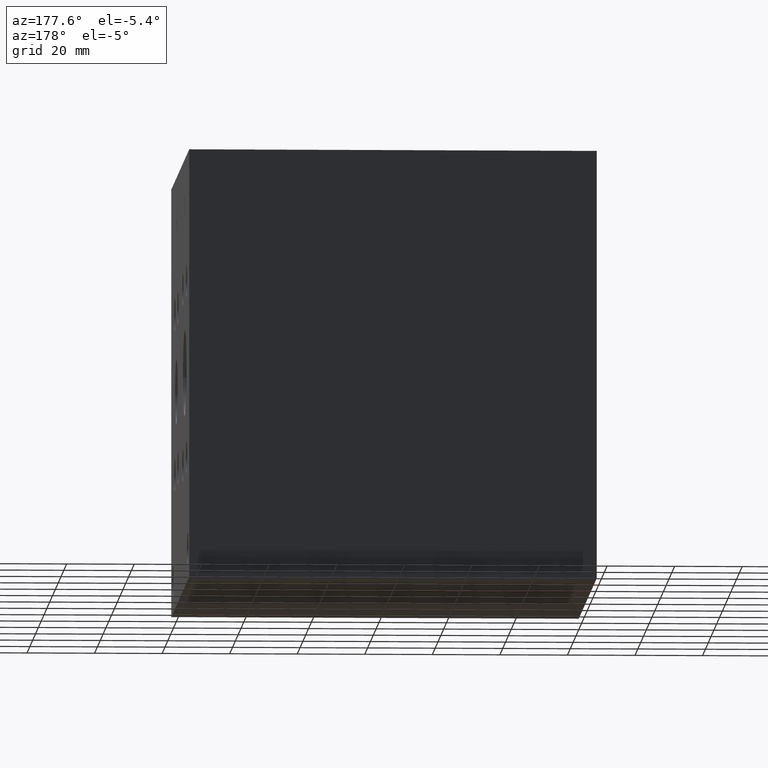
[diagram: clean part render]
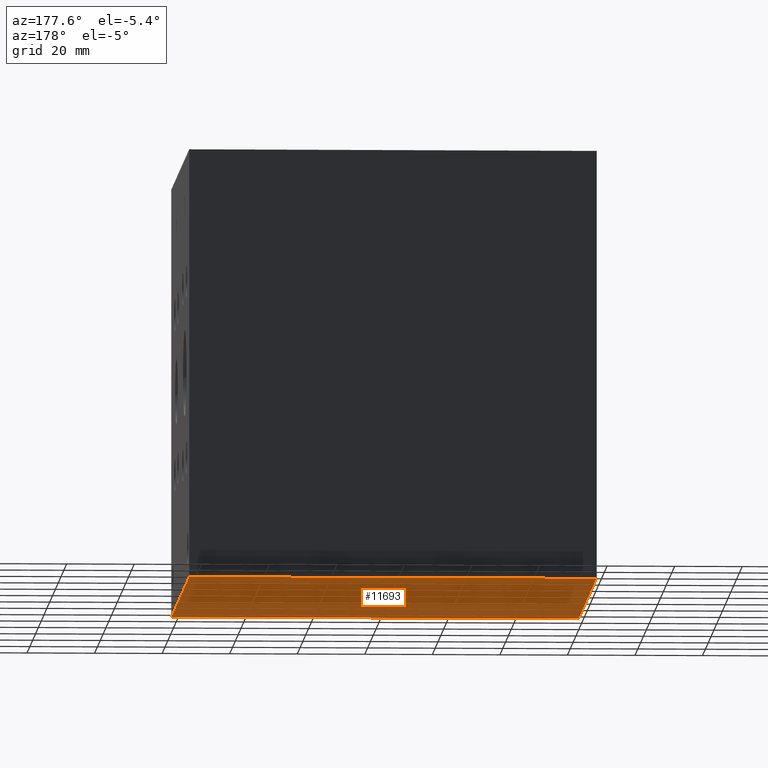
[diagram: same view with one face highlighted and labeled with its STEP entity id]
A machine part, auxiliary view. The second image highlights one B-rep face of the part: STEP entity #11693.
In plain terms, the highlighted planar face has unit normal (0, 0, 1).
Its self-contained STEP definition (entity closure, byte-faithful):
#1482=FACE_OUTER_BOUND('',#2201,.T.);
#2201=EDGE_LOOP('',(#10309,#10310,#10311,#10312));
#2258=LINE('',#15380,#3349);
#2318=LINE('',#15687,#3409);
#2640=LINE('',#17408,#3731);
#3291=LINE('',#19902,#4382);
#3349=VECTOR('',#12579,10.);
#3409=VECTOR('',#12725,10.);
#3731=VECTOR('',#13289,10.);
#4382=VECTOR('',#15116,10.);
#4432=VERTEX_POINT('',#15378);
#4433=VERTEX_POINT('',#15379);
#4508=VERTEX_POINT('',#15685);
#4509=VERTEX_POINT('',#15686);
#5579=EDGE_CURVE('',#4432,#4433,#2258,.T.);
#5679=EDGE_CURVE('',#4508,#4509,#2318,.T.);
#6145=EDGE_CURVE('',#4509,#4432,#2640,.T.);
#7107=EDGE_CURVE('',#4433,#4508,#3291,.T.);
#10309=ORIENTED_EDGE('',*,*,#6145,.F.);
#10310=ORIENTED_EDGE('',*,*,#5679,.F.);
#10311=ORIENTED_EDGE('',*,*,#7107,.F.);
#10312=ORIENTED_EDGE('',*,*,#5579,.F.);
#10673=PLANE('',#12482);
#11693=ADVANCED_FACE('',(#1482),#10673,.F.);
#12482=AXIS2_PLACEMENT_3D('',#19907,#15124,#15125);
#12579=DIRECTION('',(0.,1.,0.));
#12725=DIRECTION('',(0.,-1.,0.));
#13289=DIRECTION('',(1.,0.,0.));
#15116=DIRECTION('',(-1.,0.,0.));
#15124=DIRECTION('center_axis',(0.,0.,1.));
#15125=DIRECTION('ref_axis',(1.,0.,0.));
#15378=CARTESIAN_POINT('',(120.65,0.,0.));
#15379=CARTESIAN_POINT('',(120.65,127.,0.));
#15380=CARTESIAN_POINT('',(120.65,0.,0.));
#15685=CARTESIAN_POINT('',(0.,127.,0.));
#15686=CARTESIAN_POINT('',(0.,0.,0.));
#15687=CARTESIAN_POINT('',(0.,127.,0.));
#17408=CARTESIAN_POINT('',(0.,0.,0.));
#19902=CARTESIAN_POINT('',(120.65,127.,0.));
#19907=CARTESIAN_POINT('Origin',(60.325,63.5,0.));